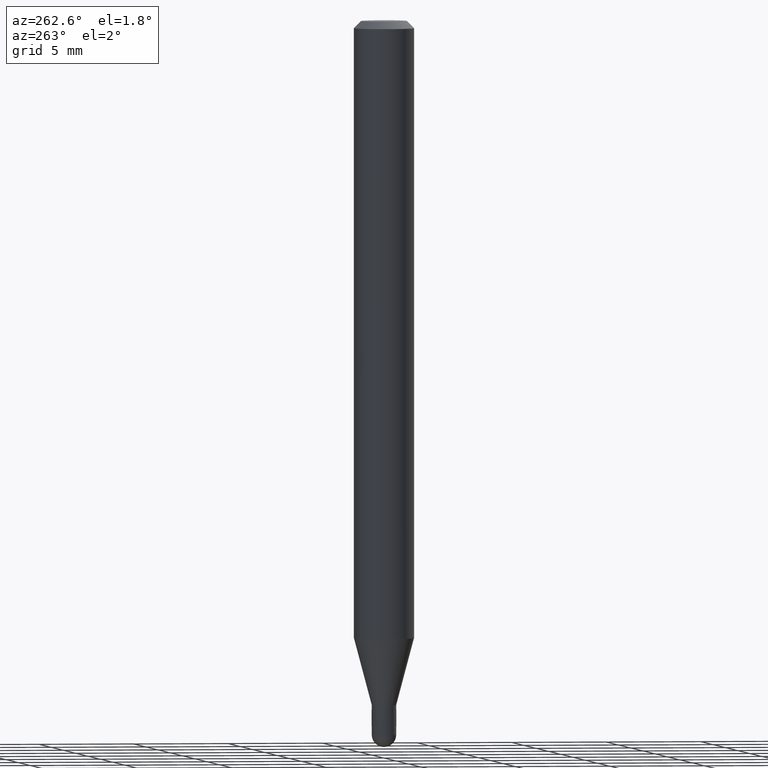
[diagram: clean part render]
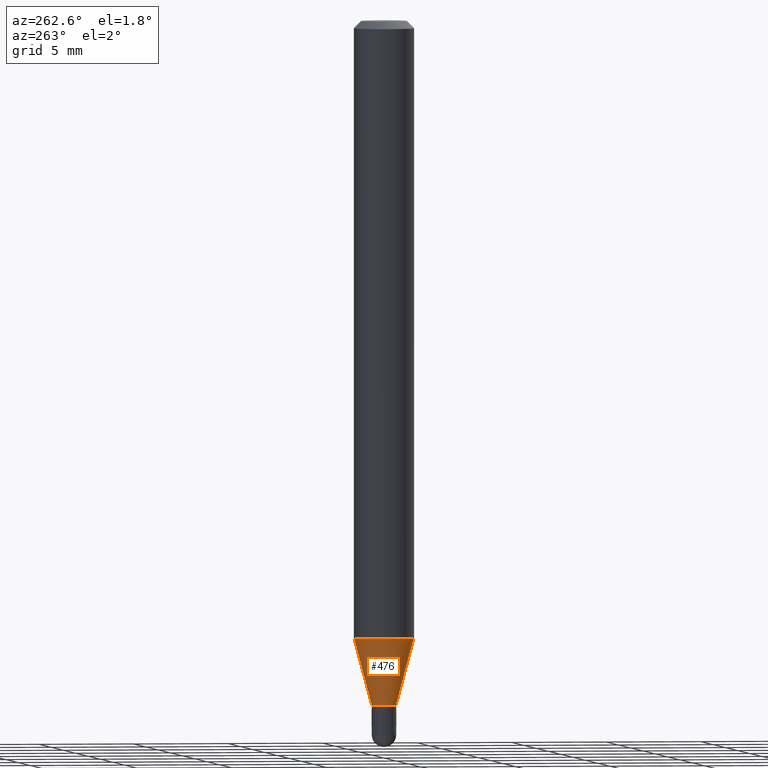
[diagram: same view with one face highlighted and labeled with its STEP entity id]
A machine part, auxiliary view. The second image highlights one B-rep face of the part: STEP entity #476.
In plain terms, the highlighted conical surface has half-angle 15 deg.
Its self-contained STEP definition (entity closure, byte-faithful):
#3 = AXIS2_PLACEMENT_3D ( 'NONE', #170, #401, #89 ) ;
#12 = EDGE_CURVE ( 'NONE', #41, #496, #98, .T. ) ;
#41 = VERTEX_POINT ( 'NONE', #324 ) ;
#53 = CARTESIAN_POINT ( 'NONE',  ( -4.364351673553606080E-16, -0.06250000000000446865, -1.274914120119951644 ) ) ;
#60 = LINE ( 'NONE', #452, #73 ) ;
#71 = LINE ( 'NONE', #506, #478 ) ;
#73 = VECTOR ( 'NONE', #181, 39.37007874015748143 ) ;
#74 = CONICAL_SURFACE ( 'NONE', #240, 0.02549999999999992550, 0.2617993877991502960 ) ;
#81 = DIRECTION ( 'NONE',  ( -6.982962677686266711E-15, -1.000000000000000000, 0.000000000000000000 ) ) ;
#82 = ORIENTED_EDGE ( 'NONE', *, *, #395, .F. ) ;
#83 = CARTESIAN_POINT ( 'NONE',  ( -1.780655482809647185E-16, -0.02550000000000486253, -1.413000000000000256 ) ) ;
#86 = CARTESIAN_POINT ( 'NONE',  ( 4.440892098500935790E-16, 0.06249999999999553135, -1.274914120119952310 ) ) ;
#89 = DIRECTION ( 'NONE',  ( -6.982962677686266711E-15, -1.000000000000000000, 0.000000000000000000 ) ) ;
#98 = CIRCLE ( 'NONE', #3, 0.02549999999999992550 ) ;
#106 = ORIENTED_EDGE ( 'NONE', *, *, #209, .F. ) ;
#115 = ORIENTED_EDGE ( 'NONE', *, *, #12, .T. ) ;
#118 = AXIS2_PLACEMENT_3D ( 'NONE', #135, #296, #176 ) ;
#130 = ORIENTED_EDGE ( 'NONE', *, *, #178, .T. ) ;
#135 = CARTESIAN_POINT ( 'NONE',  ( 3.117779068889829292E-29, -4.451315434053013459E-15, -1.274914120119952088 ) ) ;
#138 = VERTEX_POINT ( 'NONE', #86 ) ;
#159 = DIRECTION ( 'NONE',  ( 1.839019923739601104E-15, 0.2588190451025250693, 0.9659258262890670910 ) ) ;
#170 = CARTESIAN_POINT ( 'NONE',  ( 3.455465552398807557E-29, -4.933437169654324770E-15, -1.413000000000000256 ) ) ;
#176 = DIRECTION ( 'NONE',  ( -6.982962677686265922E-15, -1.000000000000000000, 4.370956789862821150E-15 ) ) ;
#178 = EDGE_CURVE ( 'NONE', #496, #257, #60, .T. ) ;
#181 = DIRECTION ( 'NONE',  ( -1.807323732225330928E-15, -0.2588190451025182970, 0.9659258262890689783 ) ) ;
#209 = EDGE_CURVE ( 'NONE', #138, #257, #409, .T. ) ;
#233 = FACE_OUTER_BOUND ( 'NONE', #386, .T. ) ;
#240 = AXIS2_PLACEMENT_3D ( 'NONE', #341, #385, #81 ) ;
#257 = VERTEX_POINT ( 'NONE', #53 ) ;
#296 = DIRECTION ( 'NONE',  ( -2.445481636517202422E-29, 3.491462965077369898E-15, 1.000000000000000000 ) ) ;
#324 = CARTESIAN_POINT ( 'NONE',  ( 3.126388037344767028E-16, 0.02549999999999499195, -1.413000000000000256 ) ) ;
#341 = CARTESIAN_POINT ( 'NONE',  ( 3.455465552398807557E-29, -4.933437169654324770E-15, -1.413000000000000256 ) ) ;
#385 = DIRECTION ( 'NONE',  ( -2.445481636517202422E-29, 3.491462965077369898E-15, 1.000000000000000000 ) ) ;
#386 = EDGE_LOOP ( 'NONE', ( #82, #115, #130, #106 ) ) ;
#395 = EDGE_CURVE ( 'NONE', #41, #138, #71, .T. ) ;
#401 = DIRECTION ( 'NONE',  ( -2.445481636517202422E-29, 3.491462965077369898E-15, 1.000000000000000000 ) ) ;
#409 = CIRCLE ( 'NONE', #118, 0.06250000000000000000 ) ;
#452 = CARTESIAN_POINT ( 'NONE',  ( -1.780655482809647185E-16, -0.02550000000000486253, -1.413000000000000256 ) ) ;
#476 = ADVANCED_FACE ( 'NONE', ( #233 ), #74, .T. ) ;
#478 = VECTOR ( 'NONE', #159, 39.37007874015748143 ) ;
#496 = VERTEX_POINT ( 'NONE', #83 ) ;
#506 = CARTESIAN_POINT ( 'NONE',  ( 1.811883976188595554E-16, 0.02549999999999499195, -1.413000000000000256 ) ) ;